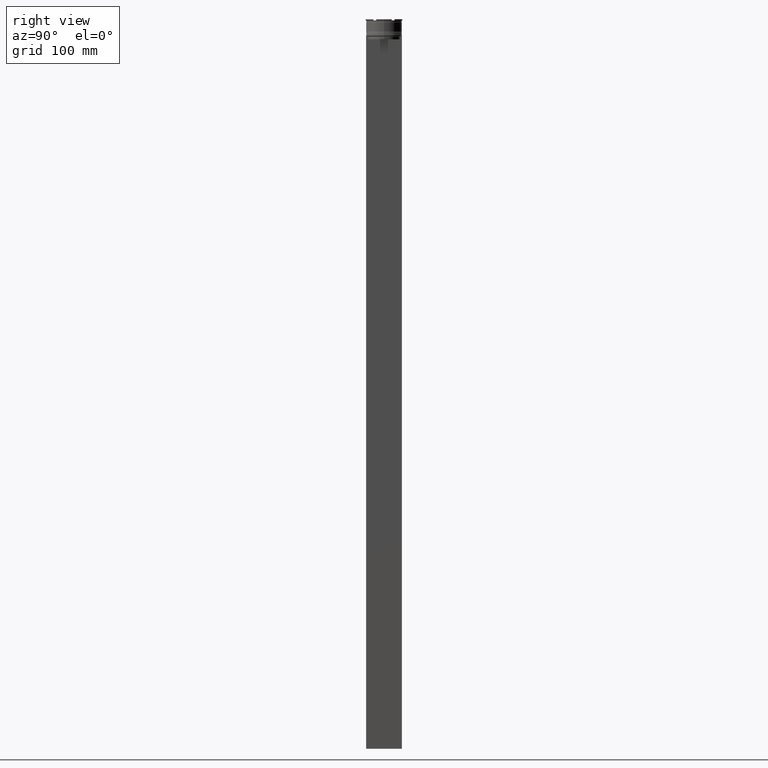
[diagram: clean part render]
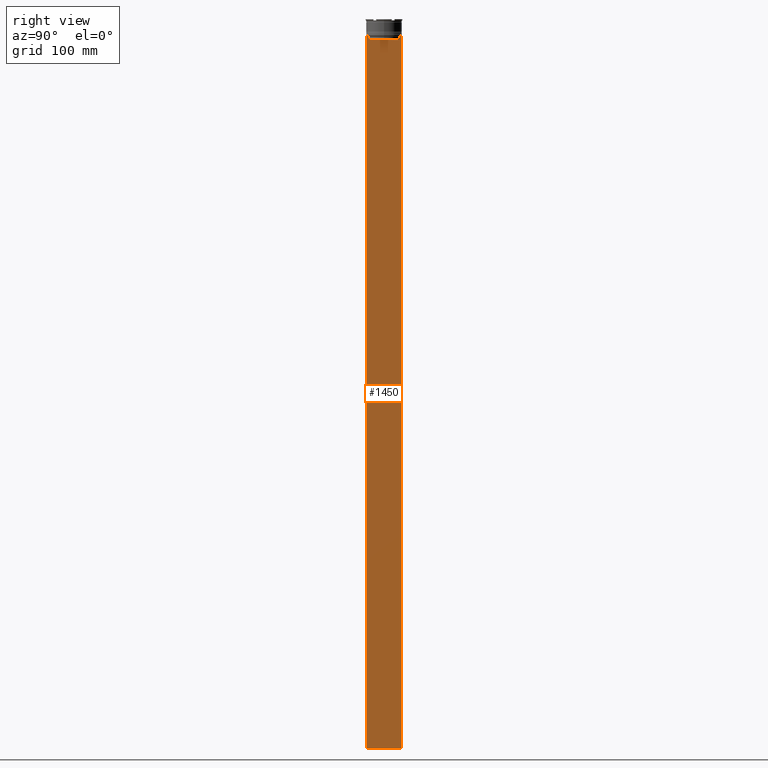
[diagram: same view with one face highlighted and labeled with its STEP entity id]
A machine part, right view. The second image highlights one B-rep face of the part: STEP entity #1450.
In plain terms, the highlighted planar face has unit normal (-1, 0, 0).
Its self-contained STEP definition (entity closure, byte-faithful):
#51 = ORIENTED_EDGE ( 'NONE', *, *, #1789, .T. ) ;
#86 = VERTEX_POINT ( 'NONE', #968 ) ;
#120 = ORIENTED_EDGE ( 'NONE', *, *, #2695, .T. ) ;
#127 = DIRECTION ( 'NONE',  ( 0.000000000000000000, 0.000000000000000000, -1.000000000000000000 ) ) ;
#171 = DIRECTION ( 'NONE',  ( 0.000000000000000000, 0.000000000000000000, -1.000000000000000000 ) ) ;
#199 = CARTESIAN_POINT ( 'NONE',  ( 0.5000000000000001110, 13.55744911232272543, -14.33333542444994002 ) ) ;
#243 = CARTESIAN_POINT ( 'NONE',  ( 0.5000000000000001110, -13.89100428334828230, -14.00000000000000178 ) ) ;
#265 = VECTOR ( 'NONE', #2123, 1000.000000000000000 ) ;
#278 = CARTESIAN_POINT ( 'NONE',  ( 0.5000000000000001110, -13.55744911241550099, -14.33333542435722663 ) ) ;
#379 = LINE ( 'NONE', #2391, #2642 ) ;
#436 = VERTEX_POINT ( 'NONE', #1427 ) ;
#447 = VECTOR ( 'NONE', #2756, 1000.000000000000000 ) ;
#468 = CARTESIAN_POINT ( 'NONE',  ( 0.5000000000000001110, 13.39066839257847263, -14.49999999999999822 ) ) ;
#487 = LINE ( 'NONE', #1507, #503 ) ;
#493 = EDGE_LOOP ( 'NONE', ( #1825, #773, #1667, #1179, #120, #1625, #2147, #51, #1984, #867, #2613, #1266 ) ) ;
#503 = VECTOR ( 'NONE', #659, 1000.000000000000000 ) ;
#610 = VERTEX_POINT ( 'NONE', #2462 ) ;
#650 = DIRECTION ( 'NONE',  ( 0.000000000000000000, 0.000000000000000000, 1.000000000000000000 ) ) ;
#659 = DIRECTION ( 'NONE',  ( 0.000000000000000000, -1.000000000000000000, 0.000000000000000000 ) ) ;
#665 = FACE_OUTER_BOUND ( 'NONE', #493, .T. ) ;
#688 = B_SPLINE_CURVE_WITH_KNOTS ( 'NONE', 3,
 ( #2832, #882, #199, #1725 ),
 .UNSPECIFIED., .F., .F.,
 ( 4, 4 ),
 ( 0.02359665025569774102, 0.02430399458637444096 ),
 .UNSPECIFIED. ) ;
#734 = CARTESIAN_POINT ( 'NONE',  ( 0.5000000000000001110, 14.99999999999999645, -614.0000000000000000 ) ) ;
#773 = ORIENTED_EDGE ( 'NONE', *, *, #1376, .T. ) ;
#834 = EDGE_CURVE ( 'NONE', #610, #1630, #999, .T. ) ;
#856 = DIRECTION ( 'NONE',  ( -0.000000000000000000, -0.000000000000000000, 1.000000000000000000 ) ) ;
#866 = EDGE_CURVE ( 'NONE', #1772, #436, #2155, .T. ) ;
#867 = ORIENTED_EDGE ( 'NONE', *, *, #2671, .T. ) ;
#882 = CARTESIAN_POINT ( 'NONE',  ( 0.5000000000000001110, 13.72422766736833744, -14.16666868251365052 ) ) ;
#914 = VECTOR ( 'NONE', #171, 1000.000000000000000 ) ;
#933 = CARTESIAN_POINT ( 'NONE',  ( 0.5000000000000001110, -15.00000000000000355, -14.00000000000000178 ) ) ;
#963 = B_SPLINE_CURVE_WITH_KNOTS ( 'NONE', 3,
 ( #1836, #278, #2711, #243 ),
 .UNSPECIFIED., .F., .F.,
 ( 4, 4 ),
 ( 0.06160226316123722928, 0.06231007364084064498 ),
 .UNSPECIFIED. ) ;
#968 = CARTESIAN_POINT ( 'NONE',  ( 0.5000000000000001110, 14.89160837518903513, -14.00000000000000178 ) ) ;
#999 = LINE ( 'NONE', #1913, #2867 ) ;
#1041 = EDGE_CURVE ( 'NONE', #2304, #1576, #2861, .T. ) ;
#1072 = CARTESIAN_POINT ( 'NONE',  ( 0.5000000000000001110, 13.89100428334828230, -14.00000000000000178 ) ) ;
#1103 = CARTESIAN_POINT ( 'NONE',  ( 0.5000000000000001110, -15.00000000000000355, 16.01666203960726165 ) ) ;
#1127 = EDGE_CURVE ( 'NONE', #1785, #2227, #1826, .T. ) ;
#1140 = VECTOR ( 'NONE', #2659, 1000.000000000000000 ) ;
#1175 = DIRECTION ( 'NONE',  ( 0.000000000000000000, -1.000000000000000000, 0.000000000000000000 ) ) ;
#1179 = ORIENTED_EDGE ( 'NONE', *, *, #1127, .T. ) ;
#1205 = EDGE_CURVE ( 'NONE', #2200, #1772, #963, .T. ) ;
#1243 = AXIS2_PLACEMENT_3D ( 'NONE', #2648, #1516, #650 ) ;
#1266 = ORIENTED_EDGE ( 'NONE', *, *, #1633, .T. ) ;
#1296 = LINE ( 'NONE', #2801, #2407 ) ;
#1347 = DIRECTION ( 'NONE',  ( 0.000000000000000000, -1.000000000000000000, 0.000000000000000000 ) ) ;
#1376 = EDGE_CURVE ( 'NONE', #2286, #1582, #688, .T. ) ;
#1418 = CARTESIAN_POINT ( 'NONE',  ( 0.5000000000000001110, 13.39066839257847263, 0.000000000000000000 ) ) ;
#1427 = CARTESIAN_POINT ( 'NONE',  ( 0.5000000000000001110, -14.89160837518903513, -14.00000000000000178 ) ) ;
#1450 = ADVANCED_FACE ( 'NONE', ( #665 ), #1550, .F. ) ;
#1476 = CARTESIAN_POINT ( 'NONE',  ( 0.5000000000000001110, -13.39066839257847086, -17.00000000000000000 ) ) ;
#1502 = CARTESIAN_POINT ( 'NONE',  ( 0.5000000000000001110, -15.00000000000000355, -14.00000000000000178 ) ) ;
#1507 = CARTESIAN_POINT ( 'NONE',  ( 0.5000000000000001110, -15.00000000000000355, -14.00000000000000178 ) ) ;
#1516 = DIRECTION ( 'NONE',  ( -1.000000000000000000, 0.000000000000000000, 0.000000000000000000 ) ) ;
#1550 = PLANE ( 'NONE',  #1243 ) ;
#1576 = VERTEX_POINT ( 'NONE', #2479 ) ;
#1579 = LINE ( 'NONE', #933, #1711 ) ;
#1582 = VERTEX_POINT ( 'NONE', #468 ) ;
#1614 = VECTOR ( 'NONE', #1347, 1000.000000000000000 ) ;
#1625 = ORIENTED_EDGE ( 'NONE', *, *, #1205, .T. ) ;
#1630 = VERTEX_POINT ( 'NONE', #734 ) ;
#1633 = EDGE_CURVE ( 'NONE', #610, #86, #1579, .T. ) ;
#1666 = CARTESIAN_POINT ( 'NONE',  ( 0.5000000000000001110, -13.89100428334828230, -14.00000000000000178 ) ) ;
#1667 = ORIENTED_EDGE ( 'NONE', *, *, #2149, .T. ) ;
#1711 = VECTOR ( 'NONE', #1175, 1000.000000000000000 ) ;
#1725 = CARTESIAN_POINT ( 'NONE',  ( 0.5000000000000001110, 13.39066839257847263, -14.49999999999999822 ) ) ;
#1772 = VERTEX_POINT ( 'NONE', #1666 ) ;
#1785 = VERTEX_POINT ( 'NONE', #1849 ) ;
#1789 = EDGE_CURVE ( 'NONE', #436, #2304, #2750, .T. ) ;
#1825 = ORIENTED_EDGE ( 'NONE', *, *, #2038, .T. ) ;
#1826 = LINE ( 'NONE', #1854, #1614 ) ;
#1836 = CARTESIAN_POINT ( 'NONE',  ( 0.5000000000000001110, -13.39066839257847263, -14.49999999999999822 ) ) ;
#1849 = CARTESIAN_POINT ( 'NONE',  ( 0.5000000000000001110, 13.39066839257847086, -17.00000000000000000 ) ) ;
#1854 = CARTESIAN_POINT ( 'NONE',  ( 0.5000000000000001110, 13.40000000000000391, -17.00000000000000000 ) ) ;
#1862 = CARTESIAN_POINT ( 'NONE',  ( 0.5000000000000001110, -15.00000000000000355, -14.00000000000000178 ) ) ;
#1901 = LINE ( 'NONE', #1418, #447 ) ;
#1907 = DIRECTION ( 'NONE',  ( 0.000000000000000000, 1.000000000000000000, 0.000000000000000000 ) ) ;
#1913 = CARTESIAN_POINT ( 'NONE',  ( 0.5000000000000001110, 14.99999999999999645, 16.01666203960726165 ) ) ;
#1984 = ORIENTED_EDGE ( 'NONE', *, *, #1041, .T. ) ;
#2038 = EDGE_CURVE ( 'NONE', #86, #2286, #487, .T. ) ;
#2123 = DIRECTION ( 'NONE',  ( 0.000000000000000000, -1.000000000000000000, 0.000000000000000000 ) ) ;
#2147 = ORIENTED_EDGE ( 'NONE', *, *, #866, .T. ) ;
#2149 = EDGE_CURVE ( 'NONE', #1582, #1785, #1901, .T. ) ;
#2155 = LINE ( 'NONE', #2387, #265 ) ;
#2200 = VERTEX_POINT ( 'NONE', #2354 ) ;
#2227 = VERTEX_POINT ( 'NONE', #1476 ) ;
#2286 = VERTEX_POINT ( 'NONE', #1072 ) ;
#2304 = VERTEX_POINT ( 'NONE', #1502 ) ;
#2354 = CARTESIAN_POINT ( 'NONE',  ( 0.5000000000000001110, -13.39066839257847263, -14.49999999999999822 ) ) ;
#2387 = CARTESIAN_POINT ( 'NONE',  ( 0.5000000000000001110, -15.00000000000000355, -14.00000000000000178 ) ) ;
#2391 = CARTESIAN_POINT ( 'NONE',  ( 0.5000000000000001110, -15.00000000000000355, -614.0000000000000000 ) ) ;
#2407 = VECTOR ( 'NONE', #856, 1000.000000000000000 ) ;
#2462 = CARTESIAN_POINT ( 'NONE',  ( 0.5000000000000001110, 14.99999999999999645, -14.00000000000000178 ) ) ;
#2479 = CARTESIAN_POINT ( 'NONE',  ( 0.5000000000000001110, -15.00000000000000355, -614.0000000000000000 ) ) ;
#2613 = ORIENTED_EDGE ( 'NONE', *, *, #834, .F. ) ;
#2642 = VECTOR ( 'NONE', #1907, 1000.000000000000000 ) ;
#2648 = CARTESIAN_POINT ( 'NONE',  ( 0.5000000000000001110, -15.00000000000000355, 16.01666203960726165 ) ) ;
#2659 = DIRECTION ( 'NONE',  ( 0.000000000000000000, -1.000000000000000000, 0.000000000000000000 ) ) ;
#2671 = EDGE_CURVE ( 'NONE', #1576, #1630, #379, .T. ) ;
#2695 = EDGE_CURVE ( 'NONE', #2227, #2200, #1296, .T. ) ;
#2711 = CARTESIAN_POINT ( 'NONE',  ( 0.5000000000000001110, -13.72422766745777167, -14.16666868242427135 ) ) ;
#2750 = LINE ( 'NONE', #1862, #1140 ) ;
#2756 = DIRECTION ( 'NONE',  ( 0.000000000000000000, 0.000000000000000000, -1.000000000000000000 ) ) ;
#2801 = CARTESIAN_POINT ( 'NONE',  ( 0.5000000000000001110, -13.39066839257847263, 0.000000000000000000 ) ) ;
#2832 = CARTESIAN_POINT ( 'NONE',  ( 0.5000000000000001110, 13.89100428334828230, -14.00000000000000178 ) ) ;
#2861 = LINE ( 'NONE', #1103, #914 ) ;
#2867 = VECTOR ( 'NONE', #127, 1000.000000000000000 ) ;